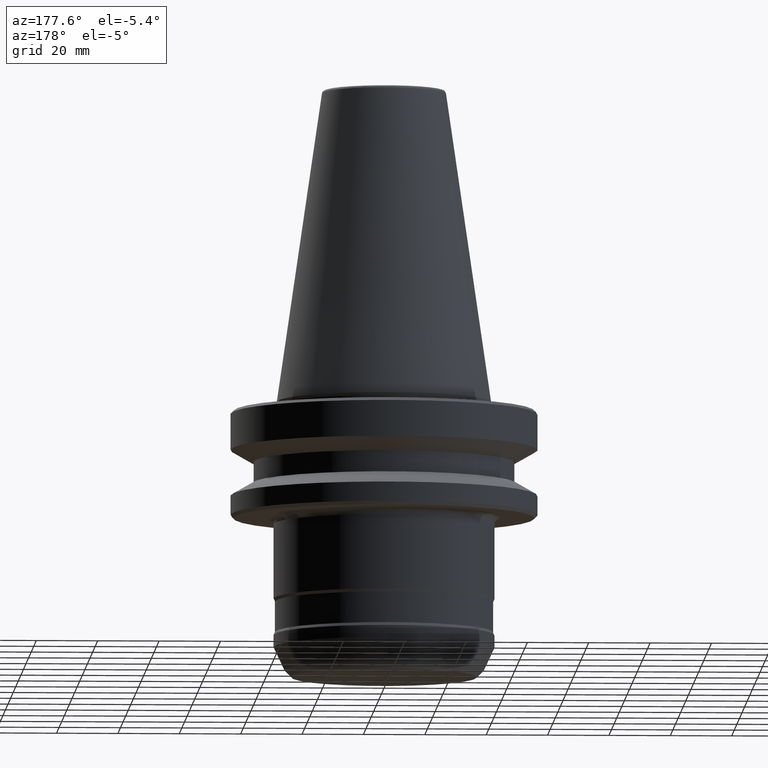
[diagram: clean part render]
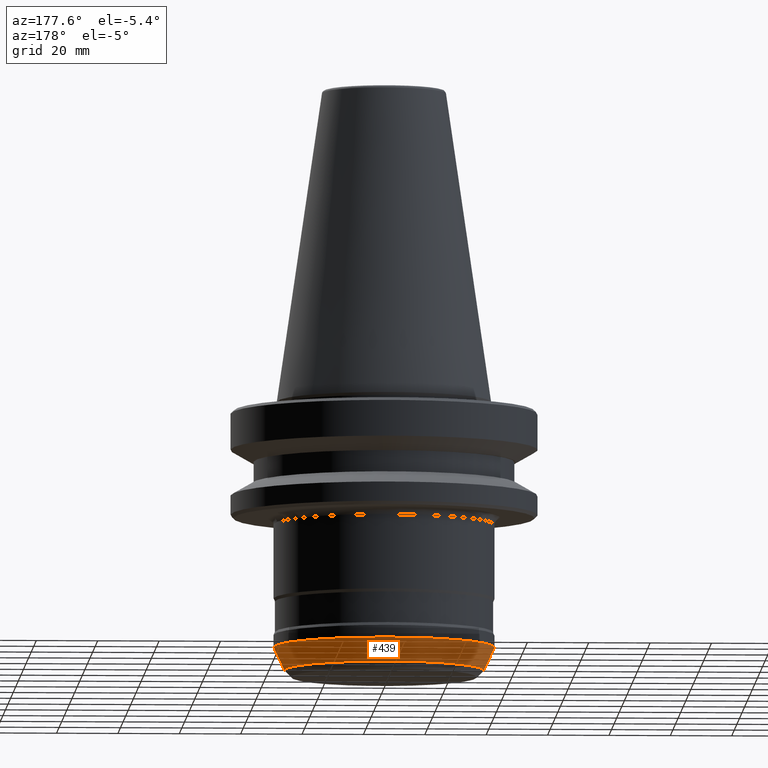
[diagram: same view with one face highlighted and labeled with its STEP entity id]
A machine part, auxiliary view. The second image highlights one B-rep face of the part: STEP entity #439.
In plain terms, the highlighted conical surface has half-angle 25 deg.
Its self-contained STEP definition (entity closure, byte-faithful):
#53 = CARTESIAN_POINT ( 'NONE',  ( 36.00000000322945200, 0.0000000000000000000, -80.24422577822989000 ) ) ;
#67 = CARTESIAN_POINT ( 'NONE',  ( 32.50000000322873500, 0.0000000000000000000, -87.75000000001486500 ) ) ;
#70 = EDGE_CURVE ( 'NONE', #773, #490, #322, .T. ) ;
#111 = CARTESIAN_POINT ( 'NONE',  ( 0.0000000000000000000, 0.0000000000000000000, -87.75000000001486500 ) ) ;
#182 = EDGE_CURVE ( 'NONE', #490, #1249, #522, .T. ) ;
#234 = AXIS2_PLACEMENT_3D ( 'NONE', #540, #1200, #637 ) ;
#308 = EDGE_LOOP ( 'NONE', ( #1089, #1093, #1220, #569 ) ) ;
#322 = CIRCLE ( 'NONE', #655, 32.50000000322873500 ) ;
#353 = DIRECTION ( 'NONE',  ( -0.0000000000000000000, -0.0000000000000000000, 1.000000000000000000 ) ) ;
#439 = ADVANCED_FACE ( 'NONE', ( #978 ), #947, .T. ) ;
#441 = LINE ( 'NONE', #872, #829 ) ;
#490 = VERTEX_POINT ( 'NONE', #668 ) ;
#522 = LINE ( 'NONE', #930, #961 ) ;
#540 = CARTESIAN_POINT ( 'NONE',  ( 0.0000000000000000000, 0.0000000000000000000, -80.24422577822989000 ) ) ;
#559 = EDGE_CURVE ( 'NONE', #773, #985, #441, .T. ) ;
#569 = ORIENTED_EDGE ( 'NONE', *, *, #559, .F. ) ;
#593 = CARTESIAN_POINT ( 'NONE',  ( -36.00000000322945200, 4.408728477325966300E-015, -80.24422577822989000 ) ) ;
#637 = DIRECTION ( 'NONE',  ( 1.000000000000000000, 0.0000000000000000000, 0.0000000000000000000 ) ) ;
#655 = AXIS2_PLACEMENT_3D ( 'NONE', #111, #353, #1047 ) ;
#661 = DIRECTION ( 'NONE',  ( 1.000000000000000000, 0.0000000000000000000, 0.0000000000000000000 ) ) ;
#668 = CARTESIAN_POINT ( 'NONE',  ( -32.50000000322873500, 3.980102097624304100E-015, -87.75000000001486500 ) ) ;
#726 = CIRCLE ( 'NONE', #234, 36.00000000322945200 ) ;
#742 = CARTESIAN_POINT ( 'NONE',  ( 0.0000000000000000000, 0.0000000000000000000, -80.24422577822989000 ) ) ;
#764 = DIRECTION ( 'NONE',  ( -0.0000000000000000000, -0.0000000000000000000, 1.000000000000000000 ) ) ;
#771 = DIRECTION ( 'NONE',  ( 0.4226182617407005000, 0.0000000000000000000, 0.9063077870366493800 ) ) ;
#773 = VERTEX_POINT ( 'NONE', #67 ) ;
#829 = VECTOR ( 'NONE', #771, 1000.000000000000100 ) ;
#872 = CARTESIAN_POINT ( 'NONE',  ( 36.00000000322945200, 0.0000000000000000000, -80.24422577822989000 ) ) ;
#930 = CARTESIAN_POINT ( 'NONE',  ( -36.00000000322945200, 4.408728477325966300E-015, -80.24422577822989000 ) ) ;
#947 = CONICAL_SURFACE ( 'NONE', #950, 36.00000000322945200, 0.4363323129985835500 ) ;
#950 = AXIS2_PLACEMENT_3D ( 'NONE', #742, #764, #661 ) ;
#957 = EDGE_CURVE ( 'NONE', #985, #1249, #726, .T. ) ;
#961 = VECTOR ( 'NONE', #1139, 1000.000000000000100 ) ;
#978 = FACE_OUTER_BOUND ( 'NONE', #308, .T. ) ;
#985 = VERTEX_POINT ( 'NONE', #53 ) ;
#1047 = DIRECTION ( 'NONE',  ( 1.000000000000000000, 0.0000000000000000000, 0.0000000000000000000 ) ) ;
#1089 = ORIENTED_EDGE ( 'NONE', *, *, #70, .T. ) ;
#1093 = ORIENTED_EDGE ( 'NONE', *, *, #182, .T. ) ;
#1139 = DIRECTION ( 'NONE',  ( -0.4226182617407005000, 5.175581015019671700E-017, 0.9063077870366493800 ) ) ;
#1200 = DIRECTION ( 'NONE',  ( -0.0000000000000000000, -0.0000000000000000000, 1.000000000000000000 ) ) ;
#1220 = ORIENTED_EDGE ( 'NONE', *, *, #957, .F. ) ;
#1249 = VERTEX_POINT ( 'NONE', #593 ) ;